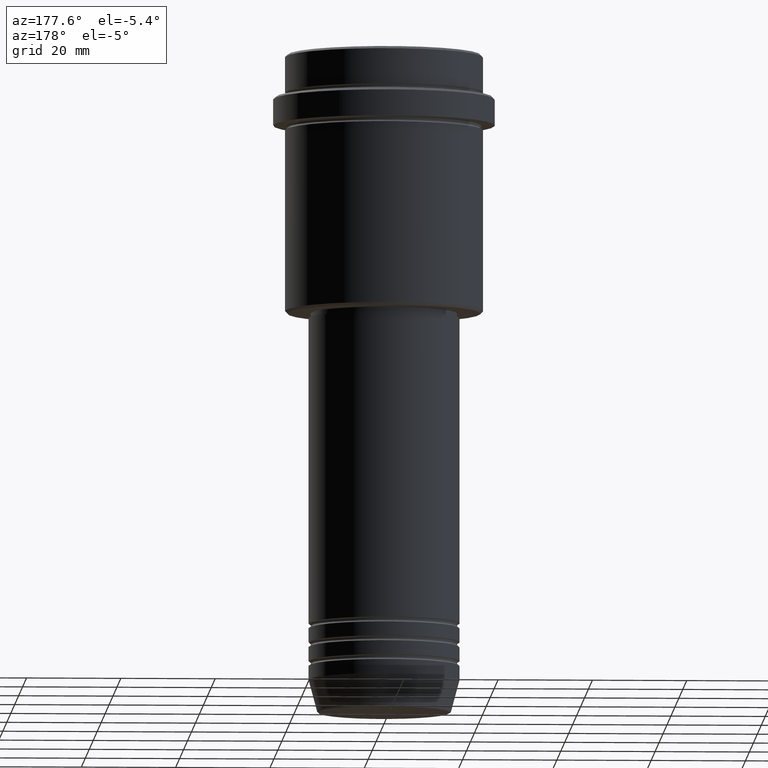
[diagram: clean part render]
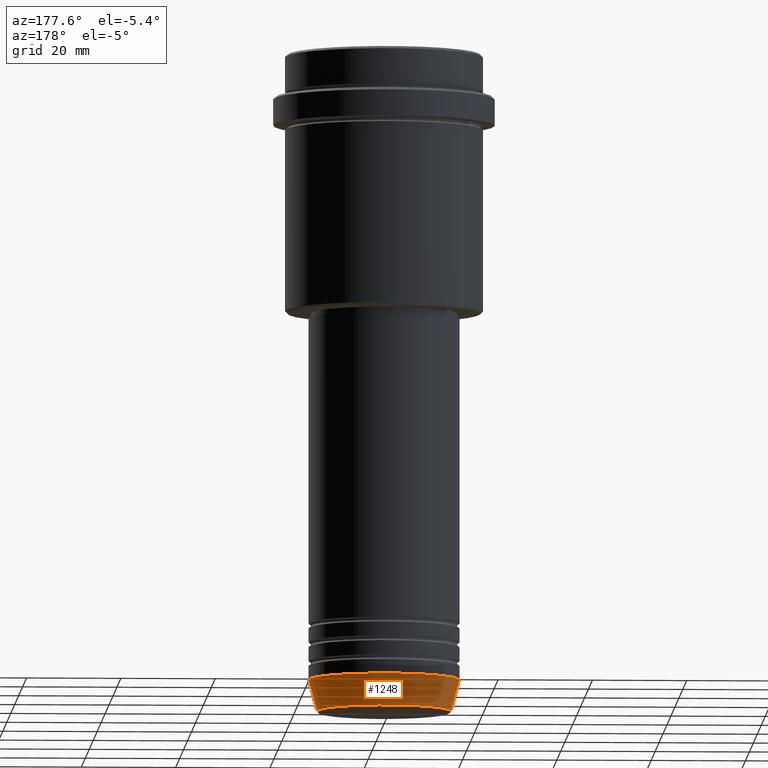
[diagram: same view with one face highlighted and labeled with its STEP entity id]
A machine part, auxiliary view. The second image highlights one B-rep face of the part: STEP entity #1248.
In plain terms, the highlighted conical surface has half-angle 15 deg.
Its self-contained STEP definition (entity closure, byte-faithful):
#25 = EDGE_CURVE ( 'NONE', #1259, #919, #147, .T. ) ;
#90 = VECTOR ( 'NONE', #1378, 1000.000000000000000 ) ;
#101 = VERTEX_POINT ( 'NONE', #885 ) ;
#139 = CARTESIAN_POINT ( 'NONE',  ( 14.22365507213718772, 0.000000000000000000, -139.6294095225512706 ) ) ;
#147 = CIRCLE ( 'NONE', #1335, 14.22365507213718772 ) ;
#179 = DIRECTION ( 'NONE',  ( 0.2588190451025213501, 0.000000000000000000, 0.9659258262890680902 ) ) ;
#192 = CARTESIAN_POINT ( 'NONE',  ( -16.00000000000000000, 1.959434878635765131E-15, -133.0000000000000000 ) ) ;
#286 = CONICAL_SURFACE ( 'NONE', #668, 16.00000000000000000, 0.2617993877991500740 ) ;
#292 = CARTESIAN_POINT ( 'NONE',  ( 16.00000000000000000, 0.000000000000000000, -133.0000000000000000 ) ) ;
#382 = AXIS2_PLACEMENT_3D ( 'NONE', #1283, #531, #847 ) ;
#500 = CARTESIAN_POINT ( 'NONE',  ( 0.000000000000000000, 0.000000000000000000, -133.0000000000000000 ) ) ;
#525 = EDGE_CURVE ( 'NONE', #919, #101, #859, .T. ) ;
#531 = DIRECTION ( 'NONE',  ( -0.000000000000000000, -0.000000000000000000, 1.000000000000000000 ) ) ;
#668 = AXIS2_PLACEMENT_3D ( 'NONE', #500, #1342, #694 ) ;
#670 = DIRECTION ( 'NONE',  ( -0.000000000000000000, -0.000000000000000000, 1.000000000000000000 ) ) ;
#694 = DIRECTION ( 'NONE',  ( 1.000000000000000000, 0.000000000000000000, 0.000000000000000000 ) ) ;
#746 = CARTESIAN_POINT ( 'NONE',  ( -14.22365507213718772, 1.850665122131323337E-15, -139.6294095225512706 ) ) ;
#819 = ORIENTED_EDGE ( 'NONE', *, *, #1312, .F. ) ;
#827 = LINE ( 'NONE', #292, #968 ) ;
#847 = DIRECTION ( 'NONE',  ( 1.000000000000000000, 0.000000000000000000, 0.000000000000000000 ) ) ;
#859 = LINE ( 'NONE', #192, #90 ) ;
#868 = EDGE_CURVE ( 'NONE', #1192, #101, #1352, .T. ) ;
#885 = CARTESIAN_POINT ( 'NONE',  ( -16.00000000000000000, 1.959434878635765131E-15, -133.0000000000000000 ) ) ;
#919 = VERTEX_POINT ( 'NONE', #746 ) ;
#920 = CARTESIAN_POINT ( 'NONE',  ( 16.00000000000000000, 0.000000000000000000, -133.0000000000000000 ) ) ;
#926 = CARTESIAN_POINT ( 'NONE',  ( 0.000000000000000000, 0.000000000000000000, -139.6294095225512706 ) ) ;
#934 = EDGE_LOOP ( 'NONE', ( #1370, #984, #1146, #819 ) ) ;
#968 = VECTOR ( 'NONE', #179, 1000.000000000000000 ) ;
#984 = ORIENTED_EDGE ( 'NONE', *, *, #525, .T. ) ;
#1097 = DIRECTION ( 'NONE',  ( 1.000000000000000000, 0.000000000000000000, 0.000000000000000000 ) ) ;
#1146 = ORIENTED_EDGE ( 'NONE', *, *, #868, .F. ) ;
#1192 = VERTEX_POINT ( 'NONE', #920 ) ;
#1217 = FACE_OUTER_BOUND ( 'NONE', #934, .T. ) ;
#1248 = ADVANCED_FACE ( 'NONE', ( #1217 ), #286, .T. ) ;
#1259 = VERTEX_POINT ( 'NONE', #139 ) ;
#1283 = CARTESIAN_POINT ( 'NONE',  ( 0.000000000000000000, 0.000000000000000000, -133.0000000000000000 ) ) ;
#1312 = EDGE_CURVE ( 'NONE', #1259, #1192, #827, .T. ) ;
#1335 = AXIS2_PLACEMENT_3D ( 'NONE', #926, #670, #1097 ) ;
#1342 = DIRECTION ( 'NONE',  ( -0.000000000000000000, -0.000000000000000000, 1.000000000000000000 ) ) ;
#1352 = CIRCLE ( 'NONE', #382, 16.00000000000000000 ) ;
#1370 = ORIENTED_EDGE ( 'NONE', *, *, #25, .T. ) ;
#1378 = DIRECTION ( 'NONE',  ( -0.2588190451025213501, 3.169619151431772337E-17, 0.9659258262890680902 ) ) ;